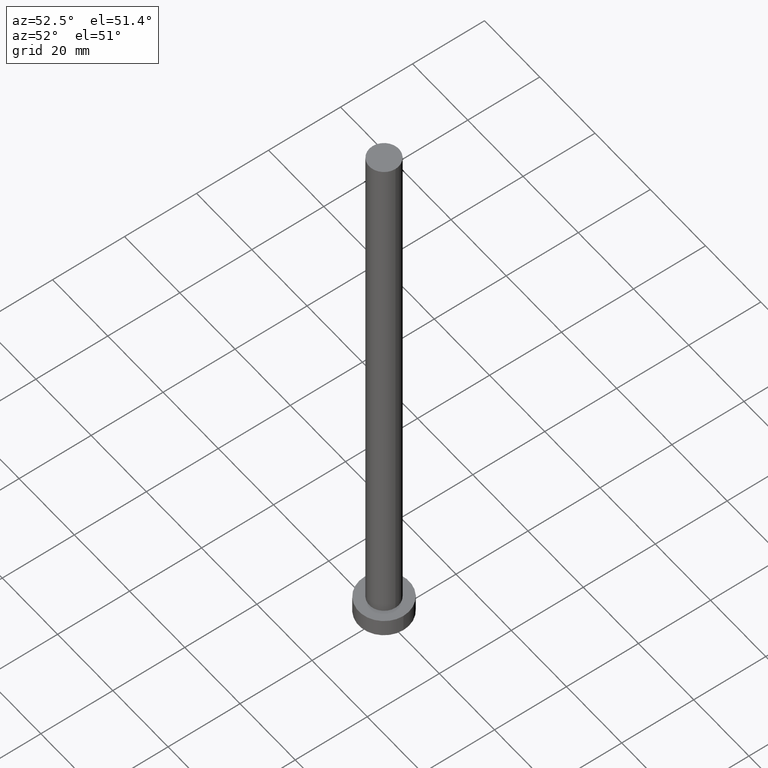
[diagram: clean part render]
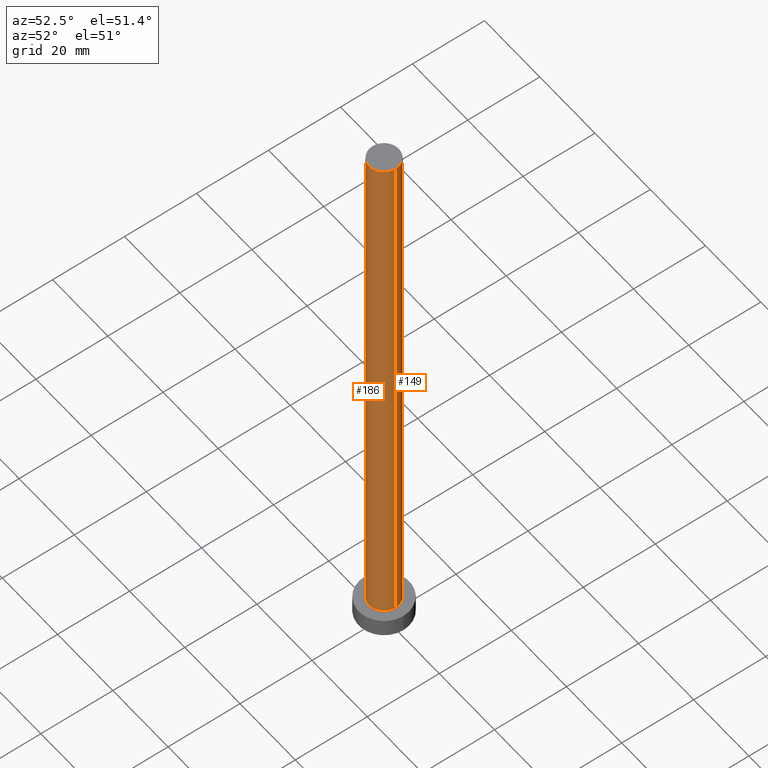
[diagram: same view with one multi-face feature highlighted, each face labeled with its STEP entity id]
A machine part, auxiliary view. The highlighted faces form ONE feature: a constant-radius fillet chain: 2 tangent blend faces with common blend radius 4.1 mm. The faces share edges in the B-rep.
Their STEP definitions:
[1] entity #186 (Cylinder):
#4 = VERTEX_POINT ( 'NONE', #45 ) ;
#6 = CIRCLE ( 'NONE', #221, 4.099999999999999645 ) ;
#20 = VERTEX_POINT ( 'NONE', #194 ) ;
#21 = DIRECTION ( 'NONE',  ( -0.000000000000000000, -0.000000000000000000, -1.000000000000000000 ) ) ;
#24 = DIRECTION ( 'NONE',  ( 0.000000000000000000, 0.000000000000000000, 1.000000000000000000 ) ) ;
#43 = ORIENTED_EDGE ( 'NONE', *, *, #134, .T. ) ;
#45 = CARTESIAN_POINT ( 'NONE',  ( -4.099999999999999645, 0.000000000000000000, 5.000000000000000000 ) ) ;
#48 = CIRCLE ( 'NONE', #76, 4.099999999999999645 ) ;
#65 = LINE ( 'NONE', #225, #117 ) ;
#76 = AXIS2_PLACEMENT_3D ( 'NONE', #214, #176, #112 ) ;
#78 = DIRECTION ( 'NONE',  ( -1.000000000000000000, 0.000000000000000000, 0.000000000000000000 ) ) ;
#97 = DIRECTION ( 'NONE',  ( 1.000000000000000000, 0.000000000000000000, 0.000000000000000000 ) ) ;
#99 = VECTOR ( 'NONE', #239, 1000.000000000000000 ) ;
#107 = AXIS2_PLACEMENT_3D ( 'NONE', #199, #21, #78 ) ;
#112 = DIRECTION ( 'NONE',  ( 1.000000000000000000, 0.000000000000000000, 0.000000000000000000 ) ) ;
#115 = EDGE_CURVE ( 'NONE', #4, #20, #48, .T. ) ;
#116 = CARTESIAN_POINT ( 'NONE',  ( 0.000000000000000000, 0.000000000000000000, 160.0000000000000000 ) ) ;
#117 = VECTOR ( 'NONE', #211, 1000.000000000000000 ) ;
#119 = VERTEX_POINT ( 'NONE', #205 ) ;
#134 = EDGE_CURVE ( 'NONE', #255, #4, #246, .T. ) ;
#141 = ORIENTED_EDGE ( 'NONE', *, *, #224, .F. ) ;
#153 = CYLINDRICAL_SURFACE ( 'NONE', #107, 4.099999999999999645 ) ;
#176 = DIRECTION ( 'NONE',  ( 0.000000000000000000, 0.000000000000000000, 1.000000000000000000 ) ) ;
#181 = CARTESIAN_POINT ( 'NONE',  ( -4.099999999999999645, 0.000000000000000000, 160.0000000000000000 ) ) ;
#186 = ADVANCED_FACE ( 'NONE', ( #237 ), #153, .T. ) ;
#194 = CARTESIAN_POINT ( 'NONE',  ( 4.099999999999999645, 5.021051876504147385E-16, 5.000000000000000000 ) ) ;
#199 = CARTESIAN_POINT ( 'NONE',  ( 0.000000000000000000, 0.000000000000000000, 160.0000000000000000 ) ) ;
#205 = CARTESIAN_POINT ( 'NONE',  ( 4.099999999999999645, 5.021051876504147385E-16, 160.0000000000000000 ) ) ;
#206 = ORIENTED_EDGE ( 'NONE', *, *, #245, .F. ) ;
#211 = DIRECTION ( 'NONE',  ( -0.000000000000000000, -0.000000000000000000, -1.000000000000000000 ) ) ;
#214 = CARTESIAN_POINT ( 'NONE',  ( 0.000000000000000000, 0.000000000000000000, 5.000000000000000000 ) ) ;
#216 = ORIENTED_EDGE ( 'NONE', *, *, #115, .T. ) ;
#220 = CARTESIAN_POINT ( 'NONE',  ( -4.099999999999999645, 0.000000000000000000, 160.0000000000000000 ) ) ;
#221 = AXIS2_PLACEMENT_3D ( 'NONE', #116, #24, #97 ) ;
#224 = EDGE_CURVE ( 'NONE', #255, #119, #6, .T. ) ;
#225 = CARTESIAN_POINT ( 'NONE',  ( 4.099999999999999645, 5.021051876504147385E-16, 160.0000000000000000 ) ) ;
#237 = FACE_OUTER_BOUND ( 'NONE', #240, .T. ) ;
#239 = DIRECTION ( 'NONE',  ( -0.000000000000000000, -0.000000000000000000, -1.000000000000000000 ) ) ;
#240 = EDGE_LOOP ( 'NONE', ( #206, #141, #43, #216 ) ) ;
#245 = EDGE_CURVE ( 'NONE', #119, #20, #65, .T. ) ;
#246 = LINE ( 'NONE', #220, #99 ) ;
#255 = VERTEX_POINT ( 'NONE', #181 ) ;
[2] entity #149 (Cylinder):
#4 = VERTEX_POINT ( 'NONE', #45 ) ;
#18 = DIRECTION ( 'NONE',  ( -0.000000000000000000, -0.000000000000000000, -1.000000000000000000 ) ) ;
#20 = VERTEX_POINT ( 'NONE', #194 ) ;
#28 = AXIS2_PLACEMENT_3D ( 'NONE', #146, #18, #172 ) ;
#31 = FACE_OUTER_BOUND ( 'NONE', #219, .T. ) ;
#33 = EDGE_CURVE ( 'NONE', #20, #4, #213, .T. ) ;
#34 = CIRCLE ( 'NONE', #111, 4.099999999999999645 ) ;
#45 = CARTESIAN_POINT ( 'NONE',  ( -4.099999999999999645, 0.000000000000000000, 5.000000000000000000 ) ) ;
#46 = ORIENTED_EDGE ( 'NONE', *, *, #33, .T. ) ;
#65 = LINE ( 'NONE', #225, #117 ) ;
#77 = DIRECTION ( 'NONE',  ( 0.000000000000000000, 0.000000000000000000, 1.000000000000000000 ) ) ;
#88 = CYLINDRICAL_SURFACE ( 'NONE', #28, 4.099999999999999645 ) ;
#90 = CARTESIAN_POINT ( 'NONE',  ( 0.000000000000000000, 0.000000000000000000, 5.000000000000000000 ) ) ;
#91 = ORIENTED_EDGE ( 'NONE', *, *, #245, .T. ) ;
#96 = ORIENTED_EDGE ( 'NONE', *, *, #182, .F. ) ;
#99 = VECTOR ( 'NONE', #239, 1000.000000000000000 ) ;
#111 = AXIS2_PLACEMENT_3D ( 'NONE', #191, #77, #180 ) ;
#117 = VECTOR ( 'NONE', #211, 1000.000000000000000 ) ;
#119 = VERTEX_POINT ( 'NONE', #205 ) ;
#134 = EDGE_CURVE ( 'NONE', #255, #4, #246, .T. ) ;
#146 = CARTESIAN_POINT ( 'NONE',  ( 0.000000000000000000, 0.000000000000000000, 160.0000000000000000 ) ) ;
#149 = ADVANCED_FACE ( 'NONE', ( #31 ), #88, .T. ) ;
#172 = DIRECTION ( 'NONE',  ( -1.000000000000000000, 0.000000000000000000, 0.000000000000000000 ) ) ;
#180 = DIRECTION ( 'NONE',  ( 1.000000000000000000, 0.000000000000000000, 0.000000000000000000 ) ) ;
#181 = CARTESIAN_POINT ( 'NONE',  ( -4.099999999999999645, 0.000000000000000000, 160.0000000000000000 ) ) ;
#182 = EDGE_CURVE ( 'NONE', #119, #255, #34, .T. ) ;
#183 = DIRECTION ( 'NONE',  ( 0.000000000000000000, 0.000000000000000000, 1.000000000000000000 ) ) ;
#191 = CARTESIAN_POINT ( 'NONE',  ( 0.000000000000000000, 0.000000000000000000, 160.0000000000000000 ) ) ;
#194 = CARTESIAN_POINT ( 'NONE',  ( 4.099999999999999645, 5.021051876504147385E-16, 5.000000000000000000 ) ) ;
#205 = CARTESIAN_POINT ( 'NONE',  ( 4.099999999999999645, 5.021051876504147385E-16, 160.0000000000000000 ) ) ;
#211 = DIRECTION ( 'NONE',  ( -0.000000000000000000, -0.000000000000000000, -1.000000000000000000 ) ) ;
#213 = CIRCLE ( 'NONE', #227, 4.099999999999999645 ) ;
#219 = EDGE_LOOP ( 'NONE', ( #96, #91, #46, #247 ) ) ;
#220 = CARTESIAN_POINT ( 'NONE',  ( -4.099999999999999645, 0.000000000000000000, 160.0000000000000000 ) ) ;
#225 = CARTESIAN_POINT ( 'NONE',  ( 4.099999999999999645, 5.021051876504147385E-16, 160.0000000000000000 ) ) ;
#227 = AXIS2_PLACEMENT_3D ( 'NONE', #90, #183, #242 ) ;
#239 = DIRECTION ( 'NONE',  ( -0.000000000000000000, -0.000000000000000000, -1.000000000000000000 ) ) ;
#242 = DIRECTION ( 'NONE',  ( 1.000000000000000000, 0.000000000000000000, 0.000000000000000000 ) ) ;
#245 = EDGE_CURVE ( 'NONE', #119, #20, #65, .T. ) ;
#246 = LINE ( 'NONE', #220, #99 ) ;
#247 = ORIENTED_EDGE ( 'NONE', *, *, #134, .F. ) ;
#255 = VERTEX_POINT ( 'NONE', #181 ) ;